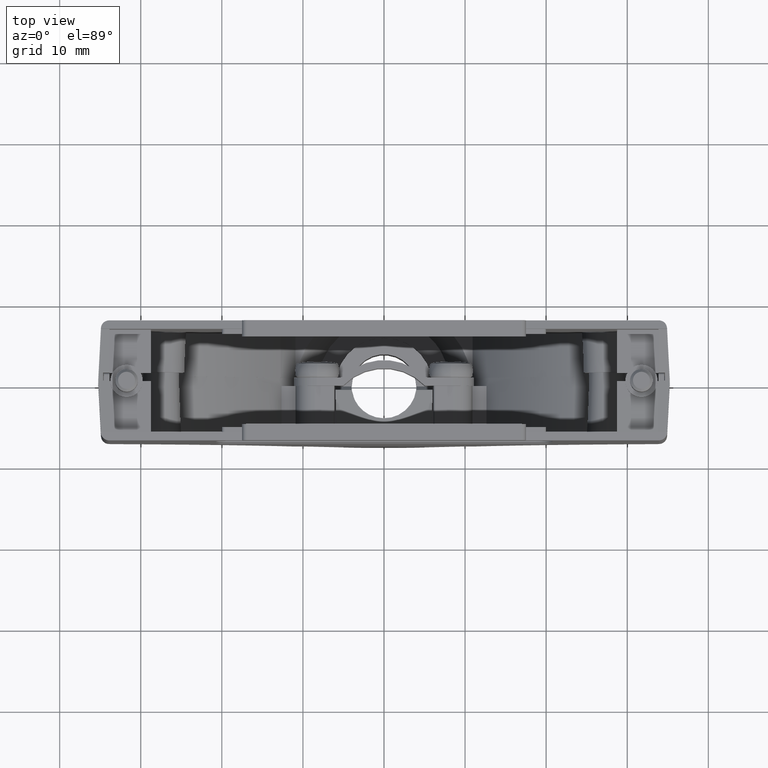
[diagram: clean part render]
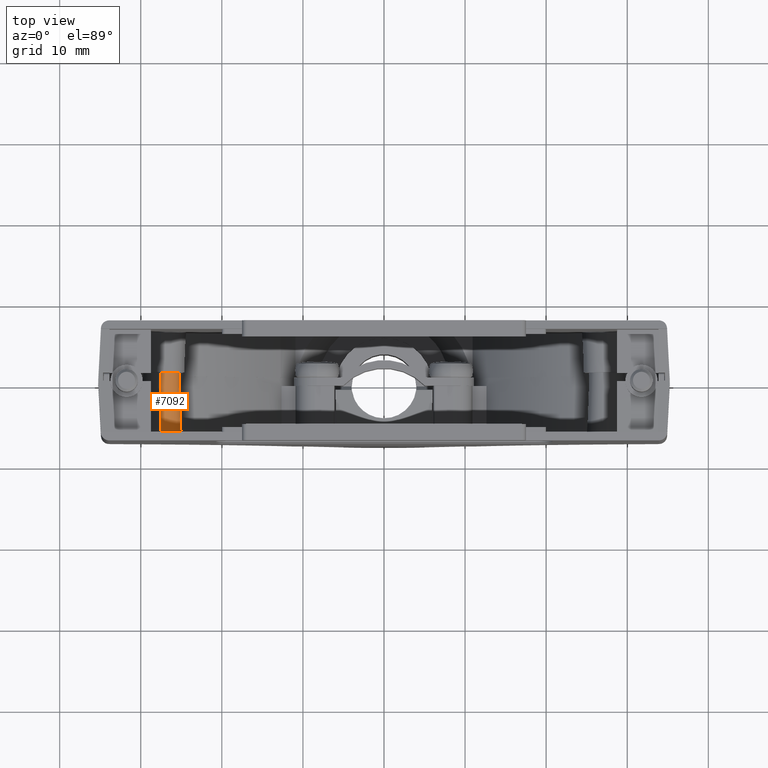
[diagram: same view with one face highlighted and labeled with its STEP entity id]
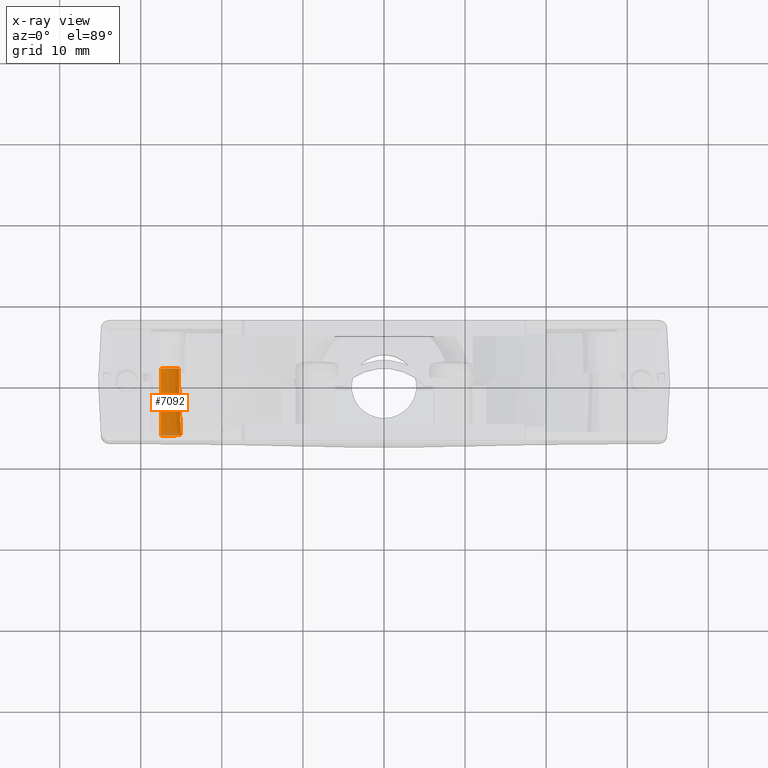
[diagram: x-ray of the same camera — body ghosted, the highlighted face saturated]
A machine part, top view. The second image highlights one B-rep face of the part: STEP entity #7092.
The next image is the same camera in x-ray: the body ghosted, the highlighted face saturated — about 6% of this face is hidden behind the body in this view.
In plain terms, the highlighted conical surface has half-angle 2 deg.
Its self-contained STEP definition (entity closure, byte-faithful):
#287 = DIRECTION ( 'NONE',  ( 0.000000000000000000, 0.000000000000000000, 1.000000000000000000 ) ) ;
#737 = CONICAL_SURFACE ( 'NONE', #14499, 2.499999999999995115, 0.03490658503988666728 ) ;
#1171 = LINE ( 'NONE', #14570, #10653 ) ;
#2248 = VERTEX_POINT ( 'NONE', #10921 ) ;
#2824 = CARTESIAN_POINT ( 'NONE',  ( -27.50000000000000355, -6.349999999999999645, -26.49999999999999645 ) ) ;
#3982 = CARTESIAN_POINT ( 'NONE',  ( -27.50000000000000355, 1.849999999999999201, -24.00000000000000000 ) ) ;
#4819 = VERTEX_POINT ( 'NONE', #2824 ) ;
#4966 = DIRECTION ( 'NONE',  ( 0.000000000000000000, 1.000000000000000000, 0.000000000000000000 ) ) ;
#5446 = VERTEX_POINT ( 'NONE', #23596 ) ;
#5559 = VERTEX_POINT ( 'NONE', #17024 ) ;
#6656 = DIRECTION ( 'NONE',  ( 0.000000000000000000, -0.9993908270190956511, 0.03489949670250104552 ) ) ;
#7092 = ADVANCED_FACE ( 'NONE', ( #16065 ), #737, .T. ) ;
#7605 = CIRCLE ( 'NONE', #13498, 2.499999999999995115 ) ;
#8396 = ORIENTED_EDGE ( 'NONE', *, *, #18210, .T. ) ;
#8682 = DIRECTION ( 'NONE',  ( -4.273955692857151045E-18, -0.9993908270190956511, -0.03489949670250104552 ) ) ;
#8740 = LINE ( 'NONE', #16222, #20653 ) ;
#9204 = AXIS2_PLACEMENT_3D ( 'NONE', #3982, #11255, #287 ) ;
#9366 = EDGE_CURVE ( 'NONE', #2248, #4819, #1171, .T. ) ;
#10653 = VECTOR ( 'NONE', #8682, 1000.000000000000114 ) ;
#10921 = CARTESIAN_POINT ( 'NONE',  ( -27.50000000000000355, 1.849999999999999201, -26.21364969016766366 ) ) ;
#11255 = DIRECTION ( 'NONE',  ( 0.000000000000000000, 1.000000000000000000, 0.000000000000000000 ) ) ;
#12269 = ORIENTED_EDGE ( 'NONE', *, *, #15822, .F. ) ;
#12389 = DIRECTION ( 'NONE',  ( -0.000000000000000000, -1.000000000000000000, -0.000000000000000000 ) ) ;
#12593 = ORIENTED_EDGE ( 'NONE', *, *, #9366, .F. ) ;
#13302 = ORIENTED_EDGE ( 'NONE', *, *, #16129, .T. ) ;
#13498 = AXIS2_PLACEMENT_3D ( 'NONE', #20444, #4966, #18351 ) ;
#13905 = CIRCLE ( 'NONE', #9204, 2.213649690167664108 ) ;
#14499 = AXIS2_PLACEMENT_3D ( 'NONE', #14588, #12389, #18267 ) ;
#14570 = CARTESIAN_POINT ( 'NONE',  ( -27.50000000000000355, -6.349999999999999645, -26.49999999999999645 ) ) ;
#14588 = CARTESIAN_POINT ( 'NONE',  ( -27.50000000000000355, -6.349999999999999645, -24.00000000000000000 ) ) ;
#15482 = EDGE_LOOP ( 'NONE', ( #12593, #12269, #8396, #13302 ) ) ;
#15822 = EDGE_CURVE ( 'NONE', #5446, #2248, #13905, .T. ) ;
#16065 = FACE_OUTER_BOUND ( 'NONE', #15482, .T. ) ;
#16129 = EDGE_CURVE ( 'NONE', #5559, #4819, #7605, .T. ) ;
#16222 = CARTESIAN_POINT ( 'NONE',  ( -27.50000000000000355, -6.349999999999999645, -21.50000000000000355 ) ) ;
#17024 = CARTESIAN_POINT ( 'NONE',  ( -27.50000000000000355, -6.349999999999999645, -21.50000000000000355 ) ) ;
#18210 = EDGE_CURVE ( 'NONE', #5446, #5559, #8740, .T. ) ;
#18267 = DIRECTION ( 'NONE',  ( 0.000000000000000000, 0.000000000000000000, 1.000000000000000000 ) ) ;
#18351 = DIRECTION ( 'NONE',  ( 0.000000000000000000, 0.000000000000000000, 1.000000000000000000 ) ) ;
#20444 = CARTESIAN_POINT ( 'NONE',  ( -27.50000000000000355, -6.349999999999999645, -24.00000000000000000 ) ) ;
#20653 = VECTOR ( 'NONE', #6656, 1000.000000000000114 ) ;
#23596 = CARTESIAN_POINT ( 'NONE',  ( -27.50000000000000355, 1.849999999999999201, -21.78635030983233634 ) ) ;